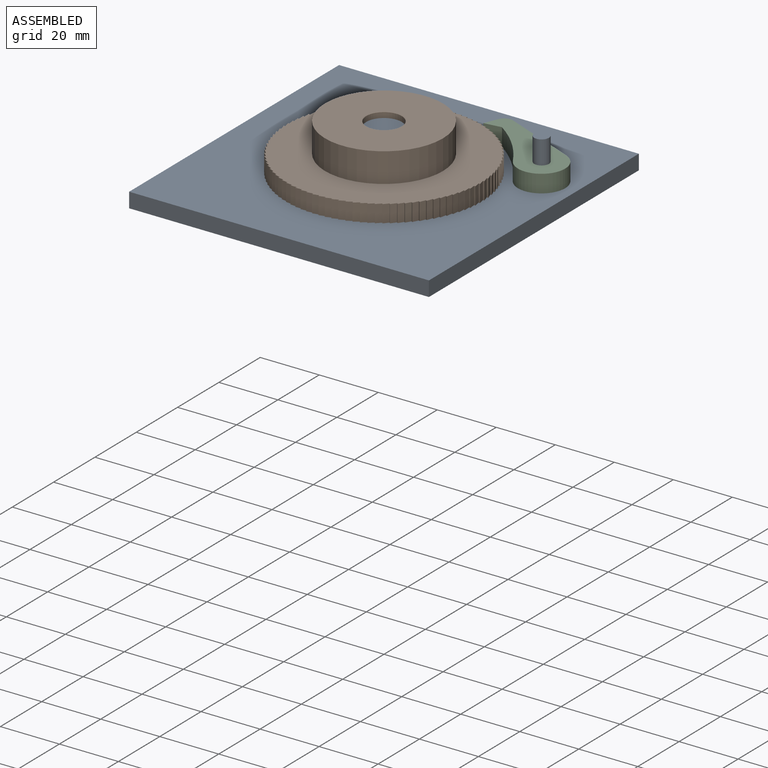
[diagram: assembled view]
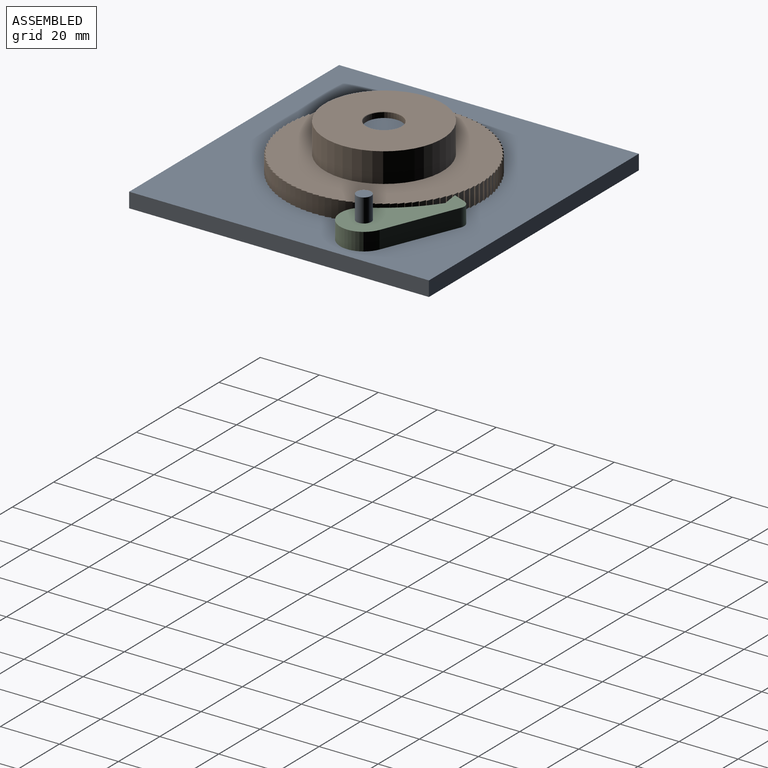
[diagram: assembled view, second angle]
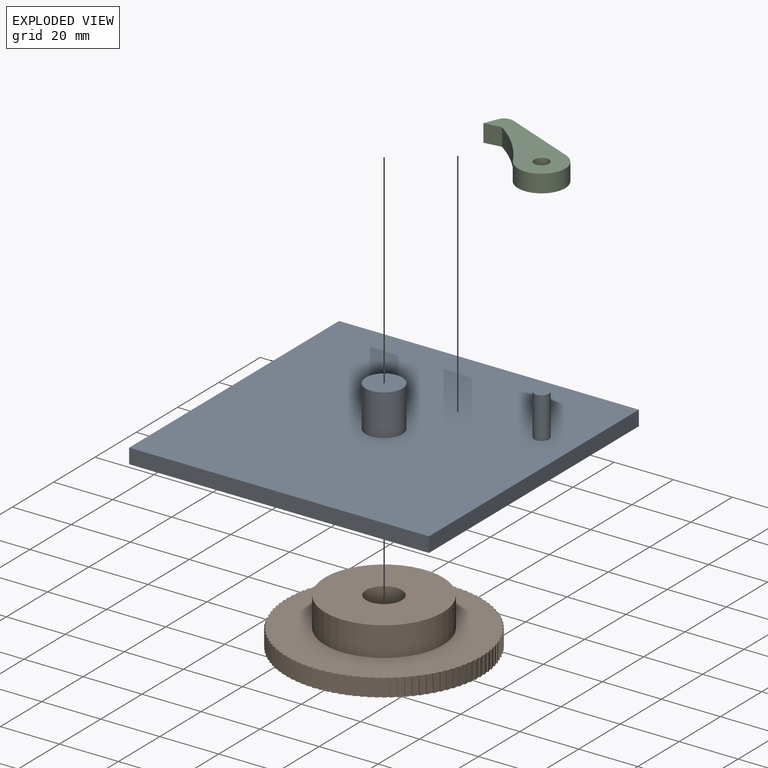
[diagram: exploded view]
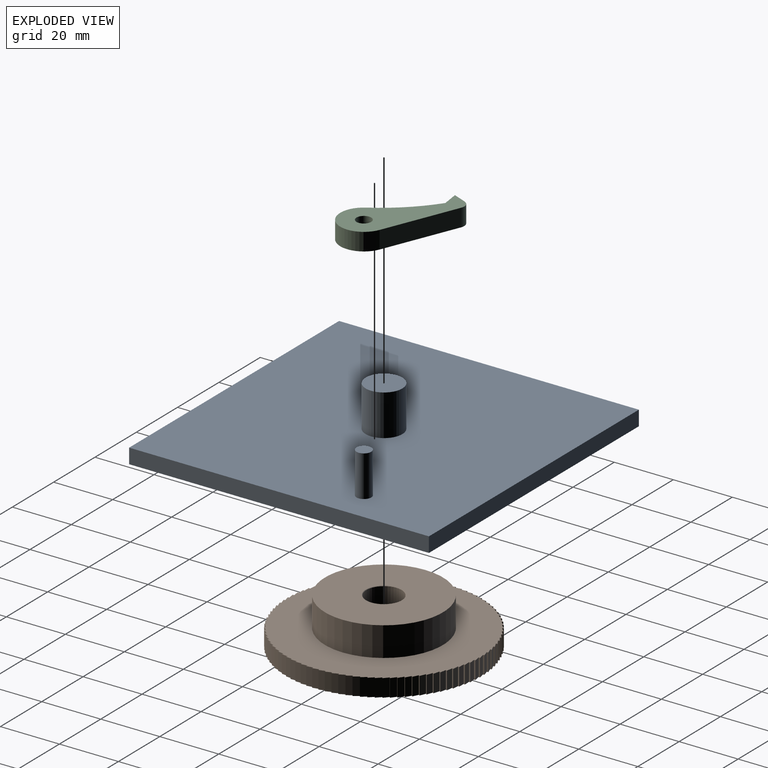
[diagram: exploded view, second angle]
ASSEMBLY  parts=3 mates=2
PART A: 10 faces, bbox 101.6x101.6x19.1 mm
  f0: plane 101.6x5.08mm, normal (-1,0,0), area 516.1mm2, adj f1,f3,f4,f5
  f1: plane 101.6x5.08mm, normal (0,-1,0), area 516.1mm2, adj f0,f2,f4,f5
  f2: plane 101.6x5.08mm, normal (1,0,0), area 516.1mm2, adj f1,f3,f4,f5
  f3: plane 101.6x5.08mm, normal (0,1,0), area 516.1mm2, adj f0,f2,f4,f5
  f4: plane 101.6x101.6mm, normal (0,0,1), area 10181.6mm2, adj f0,f1,f2,f3,f6,f8
  f5: plane 101.6x101.6mm, normal (0,0,-1), area 10322.6mm2, adj f0,f1,f2,f3
  f6: cylinder r=6.21mm len=13.97mm, axis (0,0,-1), area 545.5mm2, adj f4,f7
  f7: plane 12.43x12.43mm, normal (0,0,1), area 121.3mm2, adj f6
  f8: cylinder r=2.5mm len=13.97mm, axis (0,0,-1), area 219.4mm2, adj f4,f9
  f9: plane 5x5mm, normal (0,0,1), area 19.6mm2, adj f8
PART B: 207 faces, bbox 66.6x66.6x16 mm
  f0: plane 66.57x66.57mm, normal (0,0,1), area 2172.5mm2, adj f3,f4,f5,f6,f7,f8,f9,f10
  f1: plane 66.57x66.57mm, normal (0,0,-1), area 3311.4mm2, adj f3,f4,f5,f6,f7,f8,f9,f10
  f2: cylinder r=6mm len=15.76mm, axis (0,0,1), area 594.1mm2, adj f205,f206
  f3: plane 6x2.08mm, normal (-0.23,0.97,0), area 12.8mm2, adj f0,f1,f4,f6
  f4: plane 6x0.5mm, normal (1,-0.03,0), area 3mm2, adj f0,f1,f3,f201
  f5: plane 6x2.04mm, normal (-0.29,0.96,0), area 12.8mm2, adj f0,f1,f6,f8
  f6: plane 6x0.5mm, normal (1,0.03,0), area 3mm2, adj f0,f1,f3,f5
  f7: plane 6x2mm, normal (-0.35,0.94,0), area 12.8mm2, adj f0,f1,f8,f10
  f8: plane 6x0.5mm, normal (1,0.09,0), area 3mm2, adj f0,f1,f5,f7
  f9: plane 6x1.95mm, normal (-0.41,0.91,0), area 12.8mm2, adj f0,f1,f10,f12
  f10: plane 6x0.49mm, normal (0.99,0.16,0), area 3mm2, adj f0,f1,f7,f9
  f11: plane 6x1.89mm, normal (-0.47,0.88,0), area 12.8mm2, adj f0,f1,f12,f14
  f12: plane 6x0.49mm, normal (0.98,0.22,0), area 3mm2, adj f0,f1,f9,f11
  f13: plane 6x1.82mm, normal (-0.52,0.85,0), area 12.8mm2, adj f0,f1,f14,f16
  f14: plane 6x0.48mm, normal (0.96,0.28,0), area 3mm2, adj f0,f1,f11,f13
  f15: plane 6x1.75mm, normal (-0.58,0.82,0), area 12.8mm2, adj f0,f1,f16,f18
  f16: plane 6x0.47mm, normal (0.94,0.34,0), area 3mm2, adj f0,f1,f13,f15
  f17: plane 6x1.67mm, normal (-0.63,0.78,0), area 12.8mm2, adj f0,f1,f18,f20
  f18: plane 6x0.46mm, normal (0.92,0.4,0), area 3mm2, adj f0,f1,f15,f17
  f19: plane 6x1.58mm, normal (-0.67,0.74,0), area 12.8mm2, adj f0,f1,f20,f22
  f20: plane 6x0.45mm, normal (0.89,0.45,0), area 3mm2, adj f0,f1,f17,f19
  f21: plane 6x1.53mm, normal (-0.72,0.7,0), area 12.8mm2, adj f0,f1,f22,f24
  f22: plane 6x0.43mm, normal (0.86,0.51,0), area 3mm2, adj f0,f1,f19,f21
  f23: plane 6x1.62mm, normal (-0.76,0.65,0), area 12.8mm2, adj f0,f1,f24,f26
  f24: plane 6x0.41mm, normal (0.83,0.56,0), area 3mm2, adj f0,f1,f21,f23
  f25: plane 6x1.71mm, normal (-0.8,0.6,0), area 12.8mm2, adj f0,f1,f26,f28
  f26: plane 6x0.4mm, normal (0.79,0.61,0), area 3mm2, adj f0,f1,f23,f25
  f27: plane 6x1.79mm, normal (-0.84,0.55,0), area 12.8mm2, adj f0,f1,f28,f30
  f28: plane 6x0.38mm, normal (0.75,0.66,0), area 3mm2, adj f0,f1,f25,f27
  f29: plane 6x1.86mm, normal (-0.87,0.49,0), area 12.8mm2, adj f0,f1,f30,f32
  f30: plane 6x0.35mm, normal (0.71,0.71,0), area 3mm2, adj f0,f1,f27,f29
  f31: plane 6x1.92mm, normal (-0.9,0.44,0), area 12.8mm2, adj f0,f1,f32,f34
  f32: plane 6x0.38mm, normal (0.66,0.75,0), area 3mm2, adj f0,f1,f29,f31
  f33: plane 6x1.97mm, normal (-0.92,0.38,0), area 12.8mm2, adj f0,f1,f34,f36
  f34: plane 6x0.4mm, normal (0.61,0.79,0), area 3mm2, adj f0,f1,f31,f33
  f35: plane 6x2.02mm, normal (-0.95,0.32,0), area 12.8mm2, adj f0,f1,f36,f38
  f36: plane 6x0.41mm, normal (0.56,0.83,0), area 3mm2, adj f0,f1,f33,f35
  f37: plane 6x2.06mm, normal (-0.96,0.26,0), area 12.8mm2, adj f0,f1,f38,f40
  f38: plane 6x0.43mm, normal (0.51,0.86,0), area 3mm2, adj f0,f1,f35,f37
  f39: plane 6x2.09mm, normal (-0.98,0.2,0), area 12.8mm2, adj f0,f1,f40,f42
  f40: plane 6x0.45mm, normal (0.45,0.89,0), area 3mm2, adj f0,f1,f37,f39
  f41: plane 6x2.11mm, normal (-0.99,0.14,0), area 12.8mm2, adj f0,f1,f42,f44
  f42: plane 6x0.46mm, normal (0.4,0.92,0), area 3mm2, adj f0,f1,f39,f41
  f43: plane 6x2.13mm, normal (-1,0.08,0), area 12.8mm2, adj f0,f1,f44,f46
  f44: plane 6x0.47mm, normal (0.34,0.94,0), area 3mm2, adj f0,f1,f41,f43
  f45: plane 6x2.14mm, normal (-1,0.02,0), area 12.8mm2, adj f0,f1,f46,f48
  f46: plane 6x0.48mm, normal (0.28,0.96,0), area 3mm2, adj f0,f1,f43,f45
  f47: plane 6x2.13mm, normal (-1,-0.05,0), area 12.8mm2, adj f0,f1,f48,f50
  f48: plane 6x0.49mm, normal (0.22,0.98,0), area 3mm2, adj f0,f1,f45,f47
  f49: plane 6x2.12mm, normal (-0.99,-0.11,0), area 12.8mm2, adj f0,f1,f50,f52
  f50: plane 6x0.49mm, normal (0.16,0.99,0), area 3mm2, adj f0,f1,f47,f49
  f51: plane 6x2.1mm, normal (-0.99,-0.17,0), area 12.8mm2, adj f0,f1,f52,f54
  f52: plane 6x0.5mm, normal (0.09,1,0), area 3mm2, adj f0,f1,f49,f51
  f53: plane 6x2.08mm, normal (-0.97,-0.23,0), area 12.8mm2, adj f0,f1,f54,f56
  f54: plane 6x0.5mm, normal (0.03,1,0), area 3mm2, adj f0,f1,f51,f53
  f55: plane 6x2.04mm, normal (-0.96,-0.29,0), area 12.8mm2, adj f0,f1,f56,f58
  f56: plane 6x0.5mm, normal (-0.03,1,0), area 3mm2, adj f0,f1,f53,f55
  f57: plane 6x2mm, normal (-0.94,-0.35,0), area 12.8mm2, adj f0,f1,f58,f60
  f58: plane 6x0.5mm, normal (-0.09,1,0), area 3mm2, adj f0,f1,f55,f57
  f59: plane 6x1.95mm, normal (-0.91,-0.41,0), area 12.8mm2, adj f0,f1,f60,f62
  f60: plane 6x0.49mm, normal (-0.16,0.99,0), area 3mm2, adj f0,f1,f57,f59
  f61: plane 6x1.89mm, normal (-0.88,-0.47,0), area 12.8mm2, adj f0,f1,f62,f64
  f62: plane 6x0.49mm, normal (-0.22,0.98,0), area 3mm2, adj f0,f1,f59,f61
  f63: plane 6x1.82mm, normal (-0.85,-0.52,0), area 12.8mm2, adj f0,f1,f64,f66
  f64: plane 6x0.48mm, normal (-0.28,0.96,0), area 3mm2, adj f0,f1,f61,f63
  f65: plane 6x1.75mm, normal (-0.82,-0.58,0), area 12.8mm2, adj f0,f1,f66,f68
  f66: plane 6x0.47mm, normal (-0.34,0.94,0), area 3mm2, adj f0,f1,f63,f65
  f67: plane 6x1.67mm, normal (-0.78,-0.63,0), area 12.8mm2, adj f0,f1,f68,f70
  f68: plane 6x0.46mm, normal (-0.4,0.92,0), area 3mm2, adj f0,f1,f65,f67
  f69: plane 6x1.58mm, normal (-0.74,-0.67,0), area 12.8mm2, adj f0,f1,f70,f72
  f70: plane 6x0.45mm, normal (-0.45,0.89,0), area 3mm2, adj f0,f1,f67,f69
  f71: plane 6x1.53mm, normal (-0.7,-0.72,0), area 12.8mm2, adj f0,f1,f72,f74
  f72: plane 6x0.43mm, normal (-0.51,0.86,0), area 3mm2, adj f0,f1,f69,f71
  f73: plane 6x1.62mm, normal (-0.65,-0.76,0), area 12.8mm2, adj f0,f1,f74,f76
  f74: plane 6x0.41mm, normal (-0.56,0.83,0), area 3mm2, adj f0,f1,f71,f73
  f75: plane 6x1.71mm, normal (-0.6,-0.8,0), area 12.8mm2, adj f0,f1,f76,f78
  f76: plane 6x0.4mm, normal (-0.61,0.79,0), area 3mm2, adj f0,f1,f73,f75
  f77: plane 6x1.79mm, normal (-0.55,-0.84,0), area 12.8mm2, adj f0,f1,f78,f80
  f78: plane 6x0.38mm, normal (-0.66,0.75,0), area 3mm2, adj f0,f1,f75,f77
  f79: plane 6x1.86mm, normal (-0.49,-0.87,0), area 12.8mm2, adj f0,f1,f80,f82
  f80: plane 6x0.35mm, normal (-0.71,0.71,0), area 3mm2, adj f0,f1,f77,f79
  f81: plane 6x1.92mm, normal (-0.44,-0.9,0), area 12.8mm2, adj f0,f1,f82,f84
  f82: plane 6x0.38mm, normal (-0.75,0.66,0), area 3mm2, adj f0,f1,f79,f81
  f83: plane 6x1.97mm, normal (-0.38,-0.92,0), area 12.8mm2, adj f0,f1,f84,f86
  f84: plane 6x0.4mm, normal (-0.79,0.61,0), area 3mm2, adj f0,f1,f81,f83
  f85: plane 6x2.02mm, normal (-0.32,-0.95,0), area 12.8mm2, adj f0,f1,f86,f88
  f86: plane 6x0.41mm, normal (-0.83,0.56,0), area 3mm2, adj f0,f1,f83,f85
  f87: plane 6x2.06mm, normal (-0.26,-0.96,0), area 12.8mm2, adj f0,f1,f88,f90
  f88: plane 6x0.43mm, normal (-0.86,0.51,0), area 3mm2, adj f0,f1,f85,f87
  f89: plane 6x2.09mm, normal (-0.2,-0.98,0), area 12.8mm2, adj f0,f1,f90,f92
  f90: plane 6x0.45mm, normal (-0.89,0.45,0), area 3mm2, adj f0,f1,f87,f89
  f91: plane 6x2.11mm, normal (-0.14,-0.99,0), area 12.8mm2, adj f0,f1,f92,f94
  f92: plane 6x0.46mm, normal (-0.92,0.4,0), area 3mm2, adj f0,f1,f89,f91
  f93: plane 6x2.13mm, normal (-0.08,-1,0), area 12.8mm2, adj f0,f1,f94,f96
  f94: plane 6x0.47mm, normal (-0.94,0.34,0), area 3mm2, adj f0,f1,f91,f93
  f95: plane 6x2.14mm, normal (-0.02,-1,0), area 12.8mm2, adj f0,f1,f96,f98
  f96: plane 6x0.48mm, normal (-0.96,0.28,0), area 3mm2, adj f0,f1,f93,f95
  f97: plane 6x2.13mm, normal (0.05,-1,0), area 12.8mm2, adj f0,f1,f98,f100
  f98: plane 6x0.49mm, normal (-0.98,0.22,0), area 3mm2, adj f0,f1,f95,f97
  f99: plane 6x2.12mm, normal (0.11,-0.99,0), area 12.8mm2, adj f0,f1,f100,f102
  f100: plane 6x0.49mm, normal (-0.99,0.16,0), area 3mm2, adj f0,f1,f97,f99
  f101: plane 6x2.1mm, normal (0.17,-0.99,0), area 12.8mm2, adj f0,f1,f102,f104
  f102: plane 6x0.5mm, normal (-1,0.09,0), area 3mm2, adj f0,f1,f99,f101
  f103: plane 6x2.08mm, normal (0.23,-0.97,0), area 12.8mm2, adj f0,f1,f104,f106
  f104: plane 6x0.5mm, normal (-1,0.03,0), area 3mm2, adj f0,f1,f101,f103
  f105: plane 6x2.04mm, normal (0.29,-0.96,0), area 12.8mm2, adj f0,f1,f106,f108
  f106: plane 6x0.5mm, normal (-1,-0.03,0), area 3mm2, adj f0,f1,f103,f105
  f107: plane 6x2mm, normal (0.35,-0.94,0), area 12.8mm2, adj f0,f1,f108,f110
  f108: plane 6x0.5mm, normal (-1,-0.09,0), area 3mm2, adj f0,f1,f105,f107
  f109: plane 6x1.95mm, normal (0.41,-0.91,0), area 12.8mm2, adj f0,f1,f110,f112
  f110: plane 6x0.49mm, normal (-0.99,-0.16,0), area 3mm2, adj f0,f1,f107,f109
  f111: plane 6x1.89mm, normal (0.47,-0.88,0), area 12.8mm2, adj f0,f1,f112,f114
  f112: plane 6x0.49mm, normal (-0.98,-0.22,0), area 3mm2, adj f0,f1,f109,f111
  f113: plane 6x1.82mm, normal (0.52,-0.85,0), area 12.8mm2, adj f0,f1,f114,f116
  f114: plane 6x0.48mm, normal (-0.96,-0.28,0), area 3mm2, adj f0,f1,f111,f113
  f115: plane 6x1.75mm, normal (0.58,-0.82,0), area 12.8mm2, adj f0,f1,f116,f118
  f116: plane 6x0.47mm, normal (-0.94,-0.34,0), area 3mm2, adj f0,f1,f113,f115
  f117: plane 6x1.67mm, normal (0.63,-0.78,0), area 12.8mm2, adj f0,f1,f118,f120
  f118: plane 6x0.46mm, normal (-0.92,-0.4,0), area 3mm2, adj f0,f1,f115,f117
  f119: plane 6x1.58mm, normal (0.67,-0.74,0), area 12.8mm2, adj f0,f1,f120,f122
  f120: plane 6x0.45mm, normal (-0.89,-0.45,0), area 3mm2, adj f0,f1,f117,f119
  f121: plane 6x1.53mm, normal (0.72,-0.7,0), area 12.8mm2, adj f0,f1,f122,f124
  f122: plane 6x0.43mm, normal (-0.86,-0.51,0), area 3mm2, adj f0,f1,f119,f121
  f123: plane 6x1.62mm, normal (0.76,-0.65,0), area 12.8mm2, adj f0,f1,f124,f126
  f124: plane 6x0.41mm, normal (-0.83,-0.56,0), area 3mm2, adj f0,f1,f121,f123
  f125: plane 6x1.71mm, normal (0.8,-0.6,0), area 12.8mm2, adj f0,f1,f126,f128
  f126: plane 6x0.4mm, normal (-0.79,-0.61,0), area 3mm2, adj f0,f1,f123,f125
  f127: plane 6x1.79mm, normal (0.84,-0.55,0), area 12.8mm2, adj f0,f1,f128,f130
  f128: plane 6x0.38mm, normal (-0.75,-0.66,0), area 3mm2, adj f0,f1,f125,f127
  f129: plane 6x1.86mm, normal (0.87,-0.49,0), area 12.8mm2, adj f0,f1,f130,f132
  f130: plane 6x0.35mm, normal (-0.71,-0.71,0), area 3mm2, adj f0,f1,f127,f129
  f131: plane 6x1.92mm, normal (0.9,-0.44,0), area 12.8mm2, adj f0,f1,f132,f134
  f132: plane 6x0.38mm, normal (-0.66,-0.75,0), area 3mm2, adj f0,f1,f129,f131
  f133: plane 6x1.97mm, normal (0.92,-0.38,0), area 12.8mm2, adj f0,f1,f134,f136
  f134: plane 6x0.4mm, normal (-0.61,-0.79,0), area 3mm2, adj f0,f1,f131,f133
  f135: plane 6x2.02mm, normal (0.95,-0.32,0), area 12.8mm2, adj f0,f1,f136,f138
  f136: plane 6x0.41mm, normal (-0.56,-0.83,0), area 3mm2, adj f0,f1,f133,f135
  f137: plane 6x2.06mm, normal (0.96,-0.26,0), area 12.8mm2, adj f0,f1,f138,f140
  f138: plane 6x0.43mm, normal (-0.51,-0.86,0), area 3mm2, adj f0,f1,f135,f137
  f139: plane 6x2.09mm, normal (0.98,-0.2,0), area 12.8mm2, adj f0,f1,f140,f142
  f140: plane 6x0.45mm, normal (-0.45,-0.89,0), area 3mm2, adj f0,f1,f137,f139
  f141: plane 6x2.11mm, normal (0.99,-0.14,0), area 12.8mm2, adj f0,f1,f142,f144
  f142: plane 6x0.46mm, normal (-0.4,-0.92,0), area 3mm2, adj f0,f1,f139,f141
  f143: plane 6x2.13mm, normal (1,-0.08,0), area 12.8mm2, adj f0,f1,f144,f146
  f144: plane 6x0.47mm, normal (-0.34,-0.94,0), area 3mm2, adj f0,f1,f141,f143
  f145: plane 6x2.14mm, normal (1,-0.02,0), area 12.8mm2, adj f0,f1,f146,f148
  f146: plane 6x0.48mm, normal (-0.28,-0.96,0), area 3mm2, adj f0,f1,f143,f145
  f147: plane 6x2.13mm, normal (1,0.05,0), area 12.8mm2, adj f0,f1,f148,f150
  f148: plane 6x0.49mm, normal (-0.22,-0.98,0), area 3mm2, adj f0,f1,f145,f147
  f149: plane 6x2.12mm, normal (0.99,0.11,0), area 12.8mm2, adj f0,f1,f150,f152
  f150: plane 6x0.49mm, normal (-0.16,-0.99,0), area 3mm2, adj f0,f1,f147,f149
  f151: plane 6x2.1mm, normal (0.99,0.17,0), area 12.8mm2, adj f0,f1,f152,f154
  f152: plane 6x0.5mm, normal (-0.09,-1,0), area 3mm2, adj f0,f1,f149,f151
  f153: plane 6x2.08mm, normal (0.97,0.23,0), area 12.8mm2, adj f0,f1,f154,f156
  f154: plane 6x0.5mm, normal (-0.03,-1,0), area 3mm2, adj f0,f1,f151,f153
  f155: plane 6x2.04mm, normal (0.96,0.29,0), area 12.8mm2, adj f0,f1,f156,f158
  f156: plane 6x0.5mm, normal (0.03,-1,0), area 3mm2, adj f0,f1,f153,f155
  f157: plane 6x2mm, normal (0.94,0.35,0), area 12.8mm2, adj f0,f1,f158,f160
  f158: plane 6x0.5mm, normal (0.09,-1,0), area 3mm2, adj f0,f1,f155,f157
  f159: plane 6x1.95mm, normal (0.91,0.41,0), area 12.8mm2, adj f0,f1,f160,f162
  f160: plane 6x0.49mm, normal (0.16,-0.99,0), area 3mm2, adj f0,f1,f157,f159
  f161: plane 6x1.89mm, normal (0.88,0.47,0), area 12.8mm2, adj f0,f1,f162,f164
  f162: plane 6x0.49mm, normal (0.22,-0.98,0), area 3mm2, adj f0,f1,f159,f161
  f163: plane 6x1.82mm, normal (0.85,0.52,0), area 12.8mm2, adj f0,f1,f164,f166
  f164: plane 6x0.48mm, normal (0.28,-0.96,0), area 3mm2, adj f0,f1,f161,f163
  f165: plane 6x1.75mm, normal (0.82,0.58,0), area 12.8mm2, adj f0,f1,f166,f168
  f166: plane 6x0.47mm, normal (0.34,-0.94,0), area 3mm2, adj f0,f1,f163,f165
  f167: plane 6x1.67mm, normal (0.78,0.63,0), area 12.8mm2, adj f0,f1,f168,f170
  f168: plane 6x0.46mm, normal (0.4,-0.92,0), area 3mm2, adj f0,f1,f165,f167
  f169: plane 6x1.58mm, normal (0.74,0.67,0), area 12.8mm2, adj f0,f1,f170,f172
  f170: plane 6x0.45mm, normal (0.45,-0.89,0), area 3mm2, adj f0,f1,f167,f169
  f171: plane 6x1.53mm, normal (0.7,0.72,0), area 12.8mm2, adj f0,f1,f172,f174
  f172: plane 6x0.43mm, normal (0.51,-0.86,0), area 3mm2, adj f0,f1,f169,f171
  f173: plane 6x1.62mm, normal (0.65,0.76,0), area 12.8mm2, adj f0,f1,f174,f176
  f174: plane 6x0.41mm, normal (0.56,-0.83,0), area 3mm2, adj f0,f1,f171,f173
  f175: plane 6x1.71mm, normal (0.6,0.8,0), area 12.8mm2, adj f0,f1,f176,f178
  f176: plane 6x0.4mm, normal (0.61,-0.79,0), area 3mm2, adj f0,f1,f173,f175
  f177: plane 6x1.79mm, normal (0.55,0.84,0), area 12.8mm2, adj f0,f1,f178,f180
  f178: plane 6x0.38mm, normal (0.66,-0.75,0), area 3mm2, adj f0,f1,f175,f177
  f179: plane 6x1.86mm, normal (0.49,0.87,0), area 12.8mm2, adj f0,f1,f180,f182
  f180: plane 6x0.35mm, normal (0.71,-0.71,0), area 3mm2, adj f0,f1,f177,f179
  f181: plane 6x1.92mm, normal (0.44,0.9,0), area 12.8mm2, adj f0,f1,f182,f184
  f182: plane 6x0.38mm, normal (0.75,-0.66,0), area 3mm2, adj f0,f1,f179,f181
  f183: plane 6x1.97mm, normal (0.38,0.92,0), area 12.8mm2, adj f0,f1,f184,f186
  f184: plane 6x0.4mm, normal (0.79,-0.61,0), area 3mm2, adj f0,f1,f181,f183
  f185: plane 6x2.02mm, normal (0.32,0.95,0), area 12.8mm2, adj f0,f1,f186,f188
  f186: plane 6x0.41mm, normal (0.83,-0.56,0), area 3mm2, adj f0,f1,f183,f185
  f187: plane 6x2.06mm, normal (0.26,0.96,0), area 12.8mm2, adj f0,f1,f188,f190
  f188: plane 6x0.43mm, normal (0.86,-0.51,0), area 3mm2, adj f0,f1,f185,f187
  f189: plane 6x2.09mm, normal (0.2,0.98,0), area 12.8mm2, adj f0,f1,f190,f192
  f190: plane 6x0.45mm, normal (0.89,-0.45,0), area 3mm2, adj f0,f1,f187,f189
  f191: plane 6x2.11mm, normal (0.14,0.99,0), area 12.8mm2, adj f0,f1,f192,f194
  f192: plane 6x0.46mm, normal (0.92,-0.4,0), area 3mm2, adj f0,f1,f189,f191
  f193: plane 6x2.13mm, normal (0.08,1,0), area 12.8mm2, adj f0,f1,f194,f196
  f194: plane 6x0.47mm, normal (0.94,-0.34,0), area 3mm2, adj f0,f1,f191,f193
  f195: plane 6x2.14mm, normal (0.02,1,0), area 12.8mm2, adj f0,f1,f196,f198
  f196: plane 6x0.48mm, normal (0.96,-0.28,0), area 3mm2, adj f0,f1,f193,f195
  f197: plane 6x2.13mm, normal (-0.05,1,0), area 12.8mm2, adj f0,f1,f198,f200
  f198: plane 6x0.49mm, normal (0.98,-0.22,0), area 3mm2, adj f0,f1,f195,f197
  f199: plane 6x2.12mm, normal (-0.11,0.99,0), area 12.8mm2, adj f0,f1,f200,f202
  f200: plane 6x0.49mm, normal (0.99,-0.16,0), area 3mm2, adj f0,f1,f197,f199
  f201: plane 6x2.1mm, normal (-0.17,0.99,0), area 12.8mm2, adj f0,f1,f4,f202
  f202: plane 6x0.5mm, normal (1,-0.09,0), area 3mm2, adj f0,f1,f199,f201
  f203: plane 40x40mm, normal (0,0,1), area 1139mm2, adj f204,f205
  f204: cylinder r=20mm len=40mm, axis (0,0,-1), area 1256.6mm2, adj f0,f203
  f205: cone r=6mm half-angle=45deg, axis (0,0,1), area 6.5mm2, adj f2,f203
  f206: cone r=6.12mm half-angle=45deg, axis (0,0,-1), area 6.5mm2, adj f1,f2
PART C: 9 faces, bbox 38x16x6 mm
  f0: plane 38x16mm, normal (0,0,1), area 363.4mm2, adj f2,f3,f4,f5,f6,f7,f8
  f1: plane 38x16mm, normal (0,0,-1), area 363.4mm2, adj f2,f3,f4,f5,f6,f7,f8
  f2: cylinder r=3mm len=6mm, axis (0,0,-1), area 28.3mm2, adj f0,f1,f3,f7
  f3: plane 6x4.9mm, normal (-1,0,0), area 29.4mm2, adj f0,f1,f2,f4
  f4: plane 6x5.02mm, normal (0.5,-0.87,0), area 34.8mm2, adj f0,f1,f3,f5
  f5: cylinder r=51.64mm len=20.12mm, axis (0,0,-1), area 134.2mm2, adj f0,f1,f4,f6
  f6: cylinder r=8mm len=16mm, axis (0,0,-1), area 182.1mm2, adj f0,f1,f5,f7
  f7: plane 27x6mm, normal (0,1,0), area 162mm2, adj f0,f1,f2,f6
  f8: cylinder r=2.5mm len=6mm, axis (0,0,-1), area 94.2mm2, adj f0,f1
PLACE A at identity fixed
PLACE B rot(axis=(0,0,1),0deg) t=(0,0,10.96)mm
PLACE C rot(axis=(0,0,-1),22.2deg) t=(39.04,20.51,8.08)mm
MATE revolute B.f2 <-> A.f6  axis (0,0,1) through (0,0,5.08)mm
MATE revolute A.f8 <-> C.f6  axis (0,0,-1) through (39.04,20.51,5.08)mm
